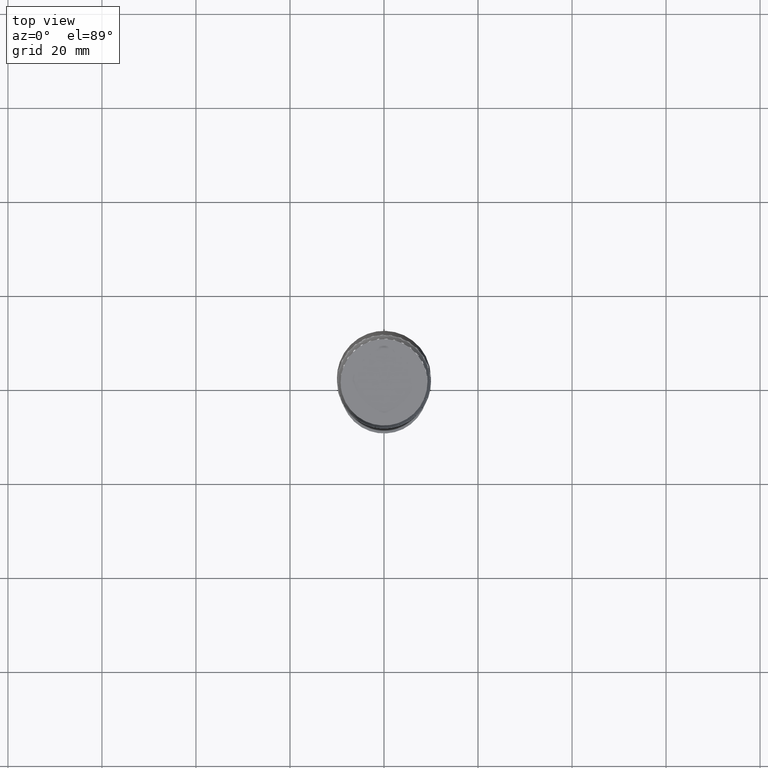
[diagram: clean part render]
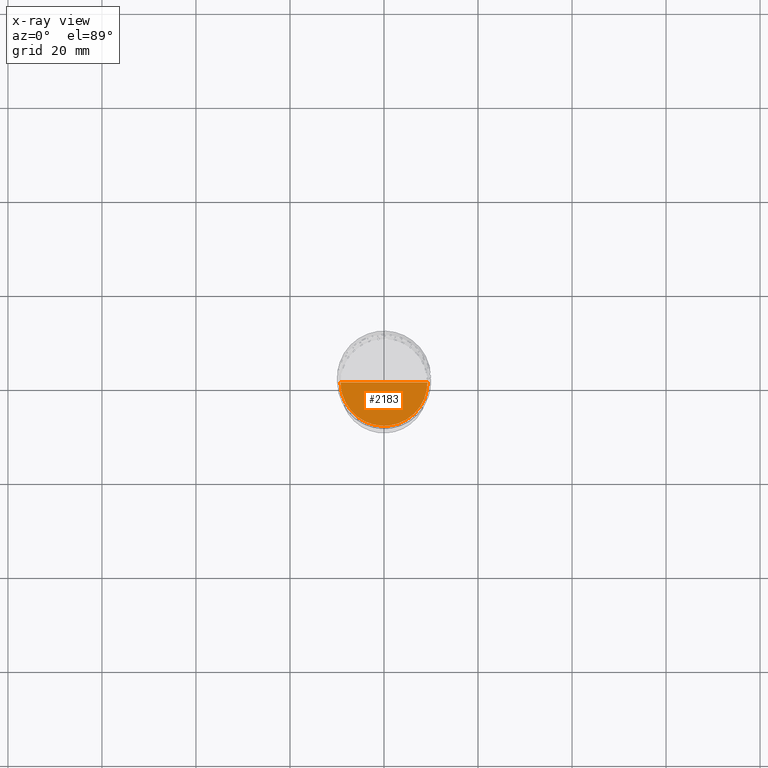
[diagram: x-ray — body ghosted, one internal face saturated and labeled with its STEP entity id]
A machine part, top view, then the same camera in x-ray: the body is ghosted and one INTERNAL B-rep face — a face not visible from any outside direction — is saturated and labeled: STEP entity #2183.
In plain terms, the highlighted face is a freeform B-spline surface patch.
Its self-contained STEP definition (entity closure, byte-faithful):
#2014=CARTESIAN_POINT('',(9.25,0.0,-7.000038105677));
#2018=CARTESIAN_POINT('',(-9.25,0.0,-7.000038105677));
#2019=CARTESIAN_POINT('',(0.0,0.0,-7.000038105677));
#2023=CARTESIAN_POINT('',(-9.25,-9.25,-7.000038105677));
#2024=CARTESIAN_POINT('',(0.0,-9.25,-7.000038105677));
#2025=CARTESIAN_POINT('',(9.25,-9.25,-7.000038105677));
#2168=(
BOUNDED_SURFACE()
B_SPLINE_SURFACE(1,2,(
(#2018,#2023,#2024,#2025,#2014),
(#2019,#2019,#2019,#2019,#2019)
), .UNSPECIFIED.,.F.,.F.,.F.)
B_SPLINE_SURFACE_WITH_KNOTS((2,2),(3,2,3),(
0.0,1.0),(
0.0,0.5,1.0), .UNSPECIFIED.)
GEOMETRIC_REPRESENTATION_ITEM()
RATIONAL_B_SPLINE_SURFACE(((1.0,0.707106781187,1.0,0.707106781187,1.0),
(1.0,0.707106781187,1.0,0.707106781187,1.0)
))
REPRESENTATION_ITEM('')
SURFACE()
);
#2169=(
BOUNDED_CURVE()
B_SPLINE_CURVE(2,(#2014,#2025,#2024,#2023,#2018),.UNSPECIFIED.,.F.,.F.)
B_SPLINE_CURVE_WITH_KNOTS((3,2,3),
(0.0,0.5,1.0),.UNSPECIFIED.)
CURVE()
GEOMETRIC_REPRESENTATION_ITEM()
RATIONAL_B_SPLINE_CURVE((1.0,0.707106781187,1.0,0.707106781187,1.0))
REPRESENTATION_ITEM('')
);
#2170=(
BOUNDED_CURVE()
B_SPLINE_CURVE(1,(#2018,#2019),.UNSPECIFIED.,.F.,.F.)
B_SPLINE_CURVE_WITH_KNOTS((2,2),
(0.0,1.0),.UNSPECIFIED.)
CURVE()
GEOMETRIC_REPRESENTATION_ITEM()
RATIONAL_B_SPLINE_CURVE((1.0,1.0))
REPRESENTATION_ITEM('')
);
#2171=(
BOUNDED_CURVE()
B_SPLINE_CURVE(1,(#2019,#2014),.UNSPECIFIED.,.F.,.F.)
B_SPLINE_CURVE_WITH_KNOTS((2,2),
(0.0,1.0),.UNSPECIFIED.)
CURVE()
GEOMETRIC_REPRESENTATION_ITEM()
RATIONAL_B_SPLINE_CURVE((1.0,1.0))
REPRESENTATION_ITEM('')
);
#2172=VERTEX_POINT('',#2014);
#2173=VERTEX_POINT('',#2018);
#2174=VERTEX_POINT('',#2019);
#2175=EDGE_CURVE('',#2172,#2173,#2169,.T.);
#2176=EDGE_CURVE('',#2173,#2174,#2170,.T.);
#2177=EDGE_CURVE('',#2174,#2172,#2171,.T.);
#2178=ORIENTED_EDGE('',*,*,#2175,.T.);
#2179=ORIENTED_EDGE('',*,*,#2176,.T.);
#2180=ORIENTED_EDGE('',*,*,#2177,.T.);
#2181=EDGE_LOOP('',(#2178,#2179,#2180));
#2182=FACE_OUTER_BOUND('',#2181,.T.);
#2183=ADVANCED_FACE('',(#2182),#2168,.T.);